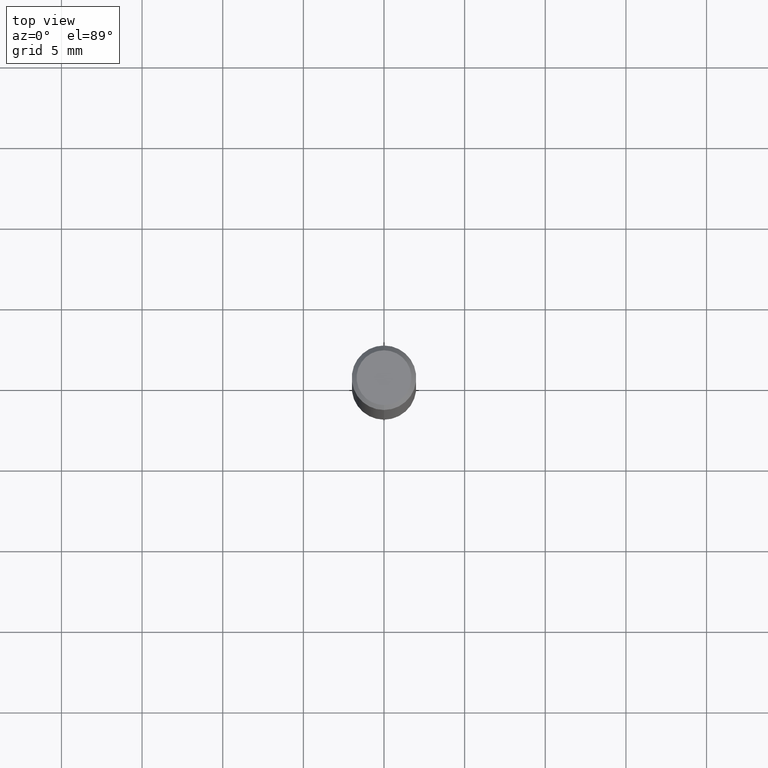
[diagram: clean part render]
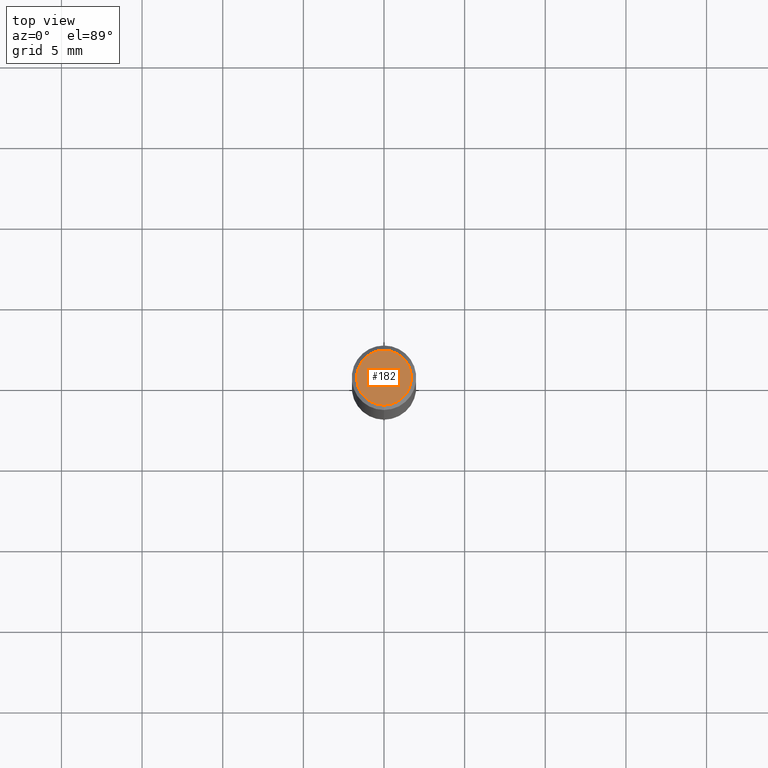
[diagram: same view with one face highlighted and labeled with its STEP entity id]
A machine part, top view. The second image highlights one B-rep face of the part: STEP entity #182.
In plain terms, the highlighted planar face has unit normal (-0, 0, 1).
Its self-contained STEP definition (entity closure, byte-faithful):
#110=EDGE_CURVE('',#152,#212,#252,.T.);
#138=EDGE_CURVE('',#212,#152,#283,.T.);
#152=VERTEX_POINT('',#299);
#182=ADVANCED_FACE('',(#334),#335,.T.);
#212=VERTEX_POINT('',#368);
#252=CIRCLE('',#407,1.7);
#283=CIRCLE('',#446,1.7);
#299=CARTESIAN_POINT('',(2.08183080149804E-016,-1.7,0.0));
#334=FACE_OUTER_BOUND('',#511,.T.);
#335=PLANE('',#512);
#368=CARTESIAN_POINT('',(0.0,1.7,0.0));
#407=AXIS2_PLACEMENT_3D('',#576,#577,#578);
#446=AXIS2_PLACEMENT_3D('',#614,#615,#616);
#511=EDGE_LOOP('',(#687,#688));
#512=AXIS2_PLACEMENT_3D('',#689,#690,#691);
#576=CARTESIAN_POINT('',(0.0,0.0,0.0));
#577=DIRECTION('',(0.0,0.0,-1.0));
#578=DIRECTION('',(0.0,1.0,0.0));
#614=CARTESIAN_POINT('',(0.0,0.0,0.0));
#615=DIRECTION('',(0.0,0.0,-1.0));
#616=DIRECTION('',(0.0,1.0,0.0));
#687=ORIENTED_EDGE('',*,*,#138,.F.);
#688=ORIENTED_EDGE('',*,*,#110,.F.);
#689=CARTESIAN_POINT('',(0.0,0.85,0.0));
#690=DIRECTION('',(-0.0,0.0,1.0));
#691=DIRECTION('',(0.0,-1.0,0.0));